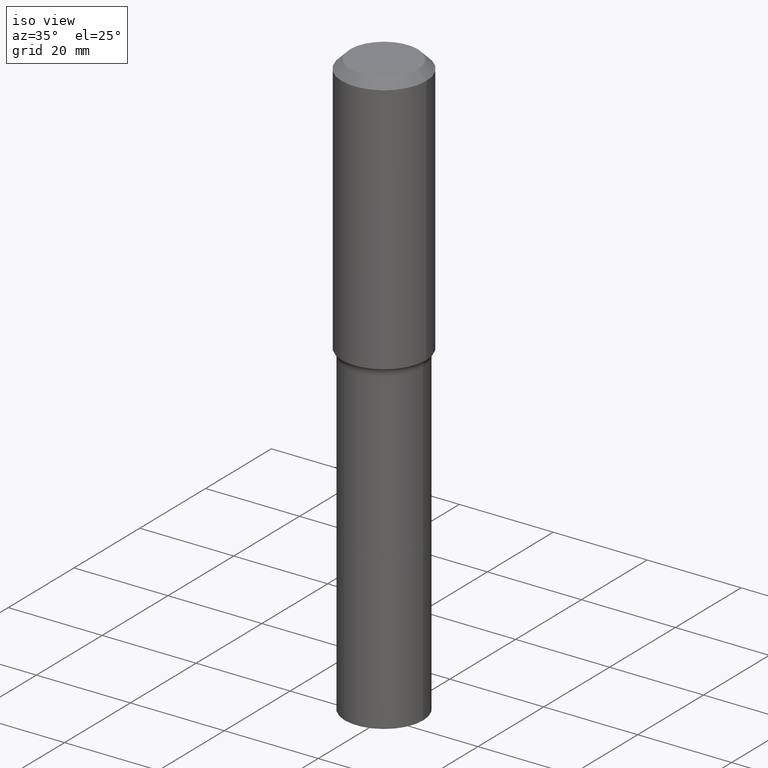
[diagram: clean part render]
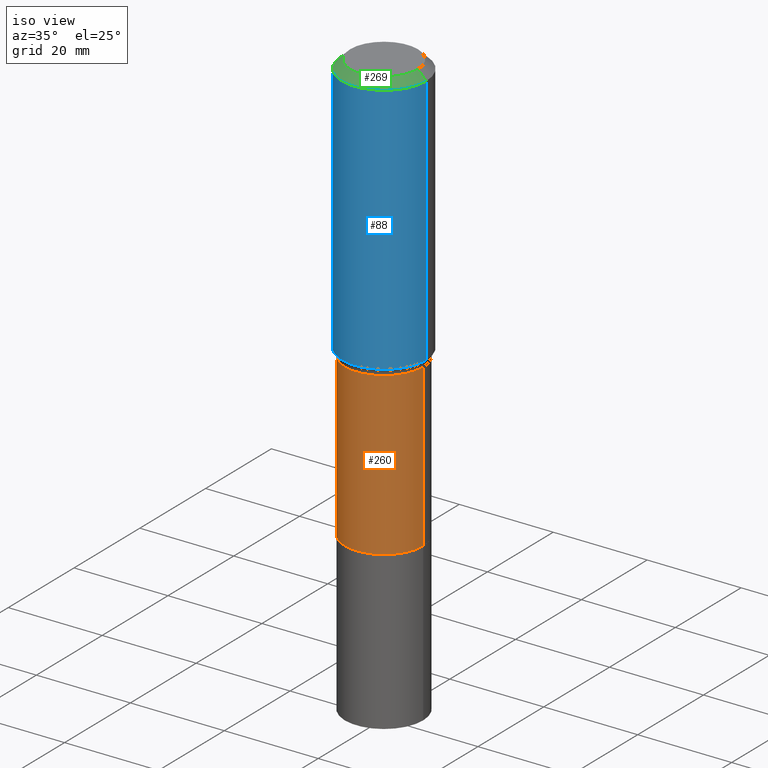
[diagram: same view with three faces highlighted in distinct colors, each labeled with its STEP entity id]
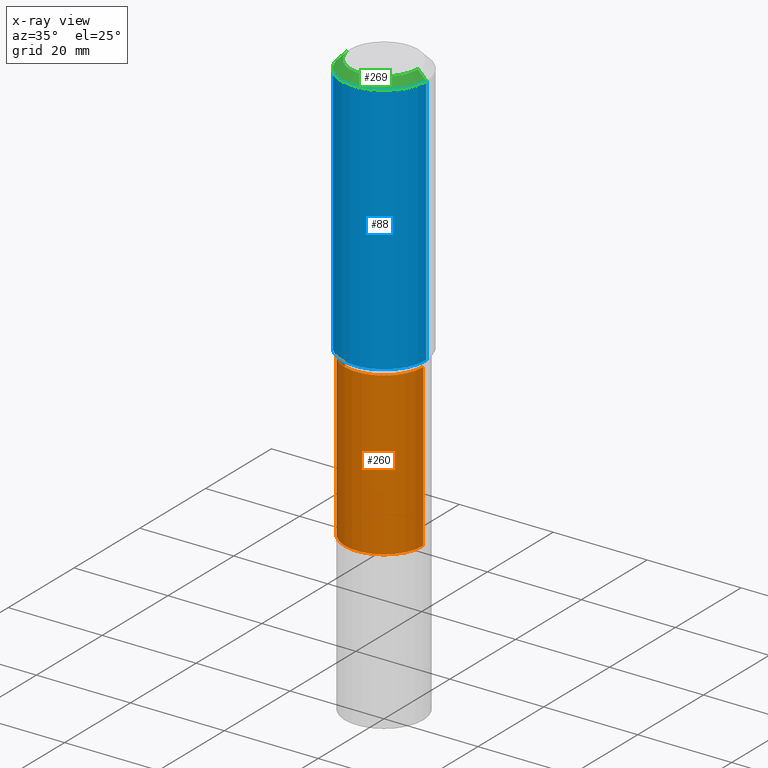
[diagram: x-ray of the same camera — body ghosted, the three highlighted faces saturated]
A machine part, iso view with three faces highlighted in distinct colors.
The next image is the same camera in x-ray (body ghosted, the three faces saturated) — at least one of them is partly hidden behind the body in this view.
Their STEP definitions:

[orange] entity #260 — the highlighted cylindrical surface (partial cylindrical patch) has radius 8.3337 mm, axis along (-0, 0, 1).
#4 = AXIS2_PLACEMENT_3D ( 'NONE', #454, #386, #271 ) ;
#17 = DIRECTION ( 'NONE',  ( 1.000000000000000000, -6.982962677686270655E-15, 0.000000000000000000 ) ) ;
#23 = CARTESIAN_POINT ( 'NONE',  ( -0.3280999999999998917, 2.331290716028887941E-15, -1.613902603112634153E-29 ) ) ;
#44 = VERTEX_POINT ( 'NONE', #501 ) ;
#65 = ORIENTED_EDGE ( 'NONE', *, *, #193, .F. ) ;
#76 = VECTOR ( 'NONE', #299, 39.37007874015748143 ) ;
#96 = DIRECTION ( 'NONE',  ( -2.445468806185136597E-29, 3.491481338843145583E-15, 1.000000000000000000 ) ) ;
#99 = CARTESIAN_POINT ( 'NONE',  ( -0.3280999999999998362, -7.870992330137724174E-15, -2.244299999999999962 ) ) ;
#168 = AXIS2_PLACEMENT_3D ( 'NONE', #502, #96, #17 ) ;
#179 = DIRECTION ( 'NONE',  ( -2.445468806185136597E-29, 3.491481338843145583E-15, 1.000000000000000000 ) ) ;
#193 = EDGE_CURVE ( 'NONE', #297, #412, #475, .T. ) ;
#206 = ORIENTED_EDGE ( 'NONE', *, *, #257, .T. ) ;
#211 = DIRECTION ( 'NONE',  ( 1.000000000000000000, -6.982962677686264344E-15, 0.000000000000000000 ) ) ;
#222 = CARTESIAN_POINT ( 'NONE',  ( 5.488365641721302321E-29, -7.835931568765670941E-15, -2.244299999999999962 ) ) ;
#257 = EDGE_CURVE ( 'NONE', #44, #412, #388, .T. ) ;
#258 = DIRECTION ( 'NONE',  ( -2.445468806185136877E-29, 3.491481338843145188E-15, 1.000000000000000000 ) ) ;
#260 = ADVANCED_FACE ( 'NONE', ( #378 ), #508, .T. ) ;
#263 = CARTESIAN_POINT ( 'NONE',  ( 0.3280999999999998917, -2.291110054548863720E-15, 1.599873600138646028E-29 ) ) ;
#265 = VECTOR ( 'NONE', #258, 39.37007874015748143 ) ;
#271 = DIRECTION ( 'NONE',  ( 1.000000000000000000, -6.982962677686267499E-15, 4.876176775795935793E-29 ) ) ;
#297 = VERTEX_POINT ( 'NONE', #99 ) ;
#299 = DIRECTION ( 'NONE',  ( -2.445468806185136877E-29, 3.491481338843145188E-15, 1.000000000000000000 ) ) ;
#316 = EDGE_LOOP ( 'NONE', ( #441, #418, #206, #65 ) ) ;
#321 = EDGE_CURVE ( 'NONE', #384, #44, #324, .T. ) ;
#324 = CIRCLE ( 'NONE', #168, 0.3281000000000000028 ) ;
#342 = CARTESIAN_POINT ( 'NONE',  ( -0.3281000000000000028, -7.870992330137724174E-15, -3.599799999999999667 ) ) ;
#378 = FACE_OUTER_BOUND ( 'NONE', #316, .T. ) ;
#384 = VERTEX_POINT ( 'NONE', #342 ) ;
#386 = DIRECTION ( 'NONE',  ( -2.445468806185136597E-29, 3.491481338843145583E-15, 1.000000000000000000 ) ) ;
#388 = LINE ( 'NONE', #263, #265 ) ;
#412 = VERTEX_POINT ( 'NONE', #497 ) ;
#418 = ORIENTED_EDGE ( 'NONE', *, *, #321, .T. ) ;
#436 = AXIS2_PLACEMENT_3D ( 'NONE', #222, #179, #211 ) ;
#441 = ORIENTED_EDGE ( 'NONE', *, *, #511, .F. ) ;
#454 = CARTESIAN_POINT ( 'NONE',  ( 0.000000000000000000, 0.000000000000000000, 0.000000000000000000 ) ) ;
#475 = CIRCLE ( 'NONE', #436, 0.3280999999999998362 ) ;
#493 = LINE ( 'NONE', #23, #76 ) ;
#497 = CARTESIAN_POINT ( 'NONE',  ( 0.3280999999999998362, -1.012704162331453269E-14, -2.244299999999999962 ) ) ;
#501 = CARTESIAN_POINT ( 'NONE',  ( 0.3281000000000000028, -1.485974457811641898E-14, -3.599799999999999667 ) ) ;
#502 = CARTESIAN_POINT ( 'NONE',  ( 8.803198608505253731E-29, -1.256863452356755408E-14, -3.599799999999999667 ) ) ;
#508 = CYLINDRICAL_SURFACE ( 'NONE', #4, 0.3280999999999998917 ) ;
#511 = EDGE_CURVE ( 'NONE', #384, #297, #493, .T. ) ;

[blue] entity #88 — the highlighted cylindrical surface (partial cylindrical patch) has radius 9.0005 mm, axis along (-0, 0, 1).
#10 = ORIENTED_EDGE ( 'NONE', *, *, #143, .F. ) ;
#30 = FACE_OUTER_BOUND ( 'NONE', #337, .T. ) ;
#46 = CARTESIAN_POINT ( 'NONE',  ( 1.733103742943416361E-30, -2.474412824838151867E-16, -0.07087000000000041877 ) ) ;
#50 = AXIS2_PLACEMENT_3D ( 'NONE', #129, #327, #478 ) ;
#53 = DIRECTION ( 'NONE',  ( -2.445468806185136597E-29, 3.491481338843145583E-15, 1.000000000000000000 ) ) ;
#59 = CARTESIAN_POINT ( 'NONE',  ( -0.3543500000000001648, 2.517808184165916180E-15, -1.743024649231826627E-29 ) ) ;
#74 = CARTESIAN_POINT ( 'NONE',  ( -0.3543500000000002759, -5.109812820957476357E-15, -2.184637483312656059 ) ) ;
#77 = DIRECTION ( 'NONE',  ( 1.000000000000000000, -6.982962677686266711E-15, 0.000000000000000000 ) ) ;
#81 = VERTEX_POINT ( 'NONE', #74 ) ;
#84 = VERTEX_POINT ( 'NONE', #113 ) ;
#88 = ADVANCED_FACE ( 'NONE', ( #30 ), #516, .T. ) ;
#113 = CARTESIAN_POINT ( 'NONE',  ( 0.3543500000000002759, -1.010203382996152320E-14, -2.184637483312656059 ) ) ;
#115 = EDGE_CURVE ( 'NONE', #81, #84, #122, .T. ) ;
#116 = VECTOR ( 'NONE', #487, 39.37007874015748143 ) ;
#122 = CIRCLE ( 'NONE', #50, 0.3543500000000002759 ) ;
#123 = ORIENTED_EDGE ( 'NONE', *, *, #243, .F. ) ;
#129 = CARTESIAN_POINT ( 'NONE',  ( 5.342462818263902286E-29, -7.627621005123393326E-15, -2.184637483312656059 ) ) ;
#139 = CARTESIAN_POINT ( 'NONE',  ( 0.3543500000000001648, -2.474412824838129483E-15, 1.727873240503290590E-29 ) ) ;
#140 = ORIENTED_EDGE ( 'NONE', *, *, #380, .T. ) ;
#143 = EDGE_CURVE ( 'NONE', #81, #452, #171, .T. ) ;
#159 = CARTESIAN_POINT ( 'NONE',  ( 0.000000000000000000, 0.000000000000000000, 0.000000000000000000 ) ) ;
#165 = CIRCLE ( 'NONE', #461, 0.3543499999999999983 ) ;
#171 = LINE ( 'NONE', #59, #116 ) ;
#173 = CARTESIAN_POINT ( 'NONE',  ( -0.3543499999999999983, -1.419722959637687608E-15, -0.07087000000000041877 ) ) ;
#194 = DIRECTION ( 'NONE',  ( 1.000000000000000000, -6.982962677686265922E-15, 4.876176775795935793E-29 ) ) ;
#234 = AXIS2_PLACEMENT_3D ( 'NONE', #159, #275, #194 ) ;
#243 = EDGE_CURVE ( 'NONE', #452, #466, #165, .T. ) ;
#275 = DIRECTION ( 'NONE',  ( -2.445468806185136597E-29, 3.491481338843145583E-15, 1.000000000000000000 ) ) ;
#278 = VECTOR ( 'NONE', #312, 39.37007874015748143 ) ;
#312 = DIRECTION ( 'NONE',  ( -2.445468806185136877E-29, 3.491481338843145188E-15, 1.000000000000000000 ) ) ;
#327 = DIRECTION ( 'NONE',  ( -2.445468806185136597E-29, 3.491481338843145583E-15, 1.000000000000000000 ) ) ;
#337 = EDGE_LOOP ( 'NONE', ( #10, #367, #140, #123 ) ) ;
#350 = CARTESIAN_POINT ( 'NONE',  ( 0.3543499999999999983, -2.721854107321943733E-15, -0.07087000000000041877 ) ) ;
#351 = LINE ( 'NONE', #139, #278 ) ;
#367 = ORIENTED_EDGE ( 'NONE', *, *, #115, .T. ) ;
#380 = EDGE_CURVE ( 'NONE', #84, #466, #351, .T. ) ;
#452 = VERTEX_POINT ( 'NONE', #173 ) ;
#461 = AXIS2_PLACEMENT_3D ( 'NONE', #46, #53, #77 ) ;
#466 = VERTEX_POINT ( 'NONE', #350 ) ;
#478 = DIRECTION ( 'NONE',  ( 1.000000000000000000, -6.982962677686268288E-15, 0.000000000000000000 ) ) ;
#487 = DIRECTION ( 'NONE',  ( -2.445468806185136877E-29, 3.491481338843145188E-15, 1.000000000000000000 ) ) ;
#516 = CYLINDRICAL_SURFACE ( 'NONE', #234, 0.3543500000000001648 ) ;

[green] entity #269 — the highlighted conical surface has half-angle 45 deg.
#12 = EDGE_CURVE ( 'NONE', #422, #443, #468, .T. ) ;
#13 = ORIENTED_EDGE ( 'NONE', *, *, #47, .F. ) ;
#16 = DIRECTION ( 'NONE',  ( -2.445468806185136597E-29, 3.491481338843145583E-15, 1.000000000000000000 ) ) ;
#41 = ORIENTED_EDGE ( 'NONE', *, *, #12, .F. ) ;
#46 = CARTESIAN_POINT ( 'NONE',  ( 1.733103742943416361E-30, -2.474412824838151867E-16, -0.07087000000000041877 ) ) ;
#47 = EDGE_CURVE ( 'NONE', #443, #466, #390, .T. ) ;
#52 = EDGE_CURVE ( 'NONE', #422, #452, #477, .T. ) ;
#53 = DIRECTION ( 'NONE',  ( -2.445468806185136597E-29, 3.491481338843145583E-15, 1.000000000000000000 ) ) ;
#61 = CARTESIAN_POINT ( 'NONE',  ( 0.2834800000000000098, -2.311636360201216027E-15, 3.860086710927458874E-18 ) ) ;
#68 = DIRECTION ( 'NONE',  ( 1.000000000000000000, -6.982962677686266711E-15, 4.876249319814053138E-29 ) ) ;
#77 = DIRECTION ( 'NONE',  ( 1.000000000000000000, -6.982962677686266711E-15, 0.000000000000000000 ) ) ;
#83 = AXIS2_PLACEMENT_3D ( 'NONE', #450, #460, #136 ) ;
#117 = CARTESIAN_POINT ( 'NONE',  ( -0.3543499999999999983, 2.226971542354313655E-15, -0.07087000000000041877 ) ) ;
#125 = EDGE_LOOP ( 'NONE', ( #13, #41, #169, #204 ) ) ;
#136 = DIRECTION ( 'NONE',  ( -1.000000000000000000, 6.982962677686266711E-15, 0.000000000000000000 ) ) ;
#165 = CIRCLE ( 'NONE', #461, 0.3543499999999999983 ) ;
#169 = ORIENTED_EDGE ( 'NONE', *, *, #52, .T. ) ;
#173 = CARTESIAN_POINT ( 'NONE',  ( -0.3543499999999999983, -1.419722959637687608E-15, -0.07087000000000041877 ) ) ;
#204 = ORIENTED_EDGE ( 'NONE', *, *, #243, .T. ) ;
#223 = VECTOR ( 'NONE', #318, 39.37007874015748143 ) ;
#243 = EDGE_CURVE ( 'NONE', #452, #466, #165, .T. ) ;
#269 = ADVANCED_FACE ( 'NONE', ( #416 ), #428, .T. ) ;
#318 = DIRECTION ( 'NONE',  ( 0.7071067811865454633, -7.319954787623248157E-15, -0.7071067811865495711 ) ) ;
#322 = CARTESIAN_POINT ( 'NONE',  ( 0.3543499999999999983, -2.678458747994157430E-15, -0.07087000000000041877 ) ) ;
#350 = CARTESIAN_POINT ( 'NONE',  ( 0.3543499999999999983, -2.721854107321943733E-15, -0.07087000000000041877 ) ) ;
#390 = LINE ( 'NONE', #322, #223 ) ;
#413 = CARTESIAN_POINT ( 'NONE',  ( -0.2834800000000000098, 2.103250901112408108E-15, 3.860086710898179346E-18 ) ) ;
#416 = FACE_OUTER_BOUND ( 'NONE', #125, .T. ) ;
#422 = VERTEX_POINT ( 'NONE', #413 ) ;
#427 = DIRECTION ( 'NONE',  ( -0.7071067811865454633, 2.468850131082235367E-15, -0.7071067811865495711 ) ) ;
#428 = CONICAL_SURFACE ( 'NONE', #83, 0.3543499999999999983, 0.7853981633974453924 ) ;
#443 = VERTEX_POINT ( 'NONE', #61 ) ;
#447 = VECTOR ( 'NONE', #427, 39.37007874015748143 ) ;
#450 = CARTESIAN_POINT ( 'NONE',  ( 1.733103742943416361E-30, -2.474412824838151867E-16, -0.07087000000000041877 ) ) ;
#452 = VERTEX_POINT ( 'NONE', #173 ) ;
#456 = CARTESIAN_POINT ( 'NONE',  ( -9.439721640706191963E-47, 1.347742071746725396E-32, 3.860086710912455110E-18 ) ) ;
#460 = DIRECTION ( 'NONE',  ( 2.445468806185136597E-29, -3.491481338843145583E-15, -1.000000000000000000 ) ) ;
#461 = AXIS2_PLACEMENT_3D ( 'NONE', #46, #53, #77 ) ;
#466 = VERTEX_POINT ( 'NONE', #350 ) ;
#468 = CIRCLE ( 'NONE', #496, 0.2834800000000000098 ) ;
#477 = LINE ( 'NONE', #117, #447 ) ;
#496 = AXIS2_PLACEMENT_3D ( 'NONE', #456, #16, #68 ) ;